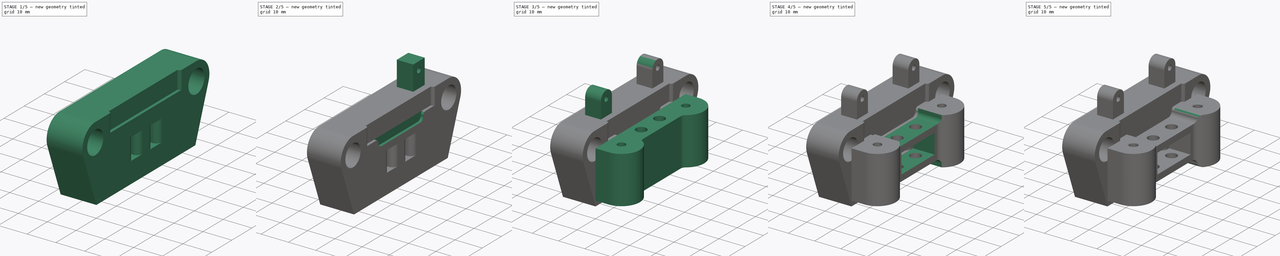
[diagram: build sequence overview — one tinted view per stage of 5, left to right]
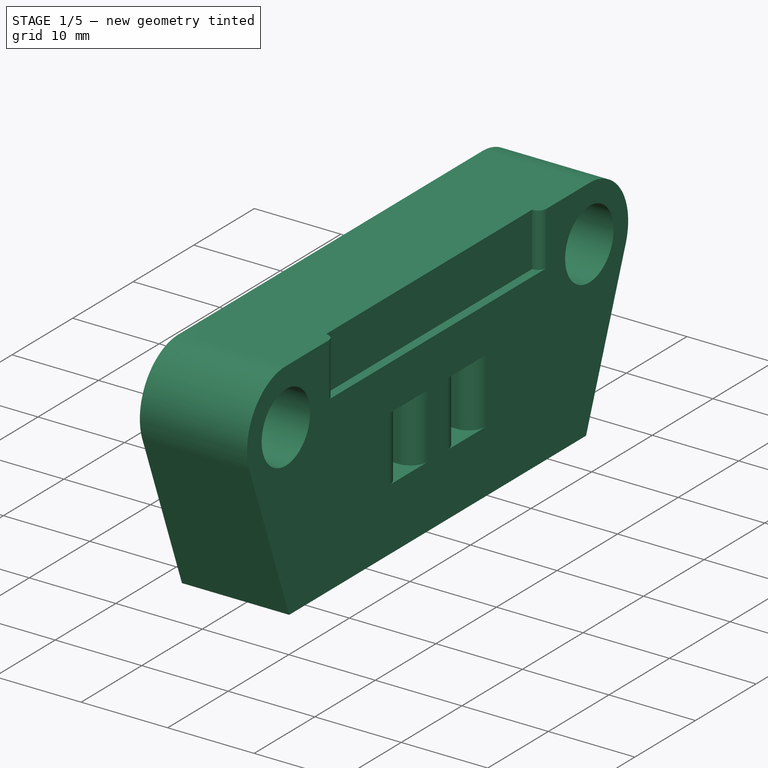
[diagram: stage 1 of 5 — iso view after this stage's code; geometry added in this stage tinted green]
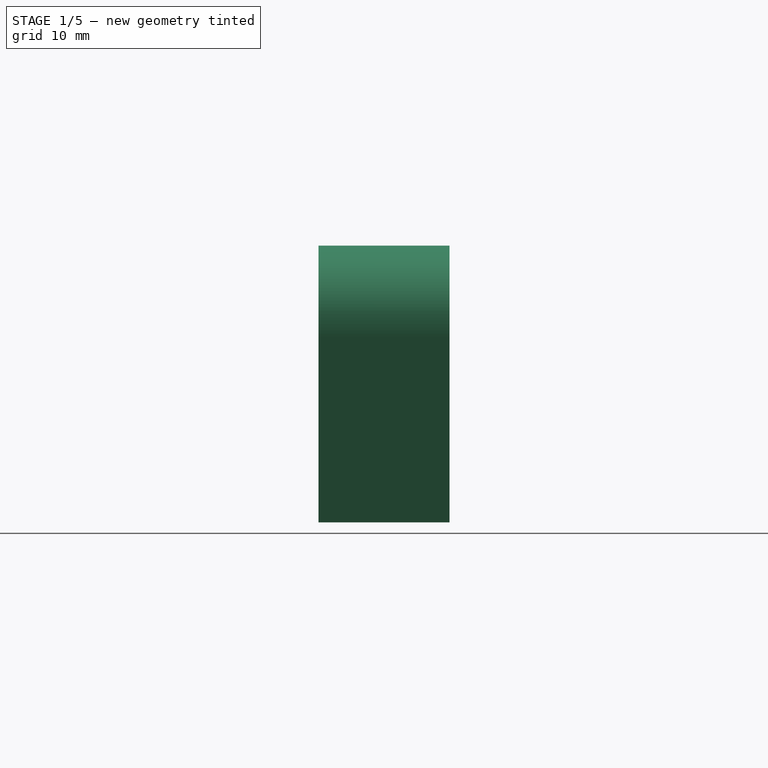
[diagram: stage 1 of 5 — front view after this stage's code; geometry added in this stage tinted green]
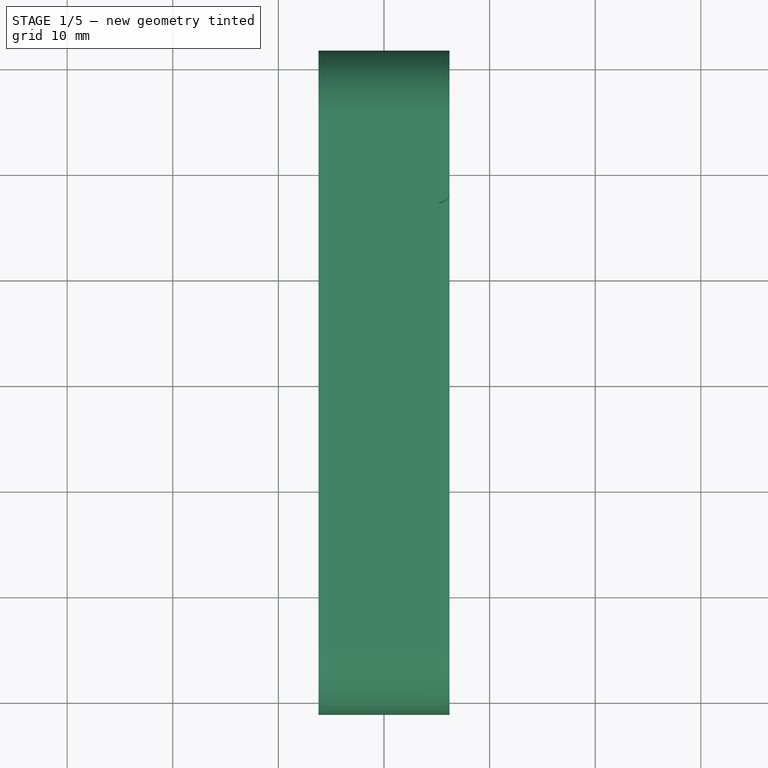
[diagram: stage 1 of 5 — top view after this stage's code; geometry added in this stage tinted green]
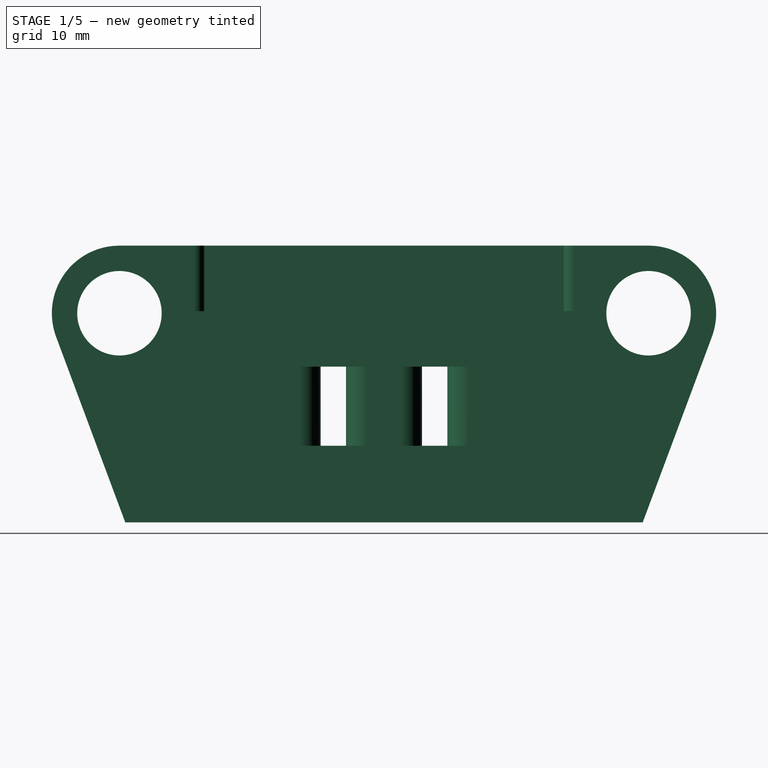
[diagram: stage 1 of 5 — right view after this stage's code; geometry added in this stage tinted green]
FCSTD DOCUMENT  (FreeCAD 0.19R24291 (Git))
Label: plotter-e-carridge-holder
License: All rights reserved
LicenseURL: http://en.wikipedia.org/wiki/All_rights_reserved
objects: Sketcher::SketchObject×11, PartDesign::Fillet×8, PartDesign::Pad×6, PartDesign::Body×6, PartDesign::Pocket×5, Spreadsheet::Sheet×1, PartDesign::Chamfer×1, App::Part×1
note: 57 computed .brp shape members not serialized (recipe doc carries the construction recipe); baked Part::Feature solids carry a one-line shape summary decoded from their .brp

FEATURE [Spreadsheet::Sheet] Spreadsheet  label="Specs"
  cells = A5=Core length; B5(core_length)=70; A6=Core heigth; B6(core_height)=22; A7=Core inner length; B7(core_inner_length)=36; A9=Belt hole heigth; B9(belt_hole_height)=9.199999999999999; A10=Belt hole width; B10(belt_hole_width)=16; A12=LM8UU Diameter; B12(lm8uu_d)=15.1; A13=Rod Diameter; B13(rod_d)=8.4; A14=LM8UU Legth; B14(lm8uu_l)=24; A16=nema_l; B16(nema_l)=42; A17=nema_hole_d; B17(nema_hole_d)=3; A18=nema_hole_pos; B18(nema_hole_pos)==31 / 2
FEATURE [Sketcher::SketchObject] Sketch019
  FullyConstrained = true
  MapMode = 5
  Placement = pos=(0,0,0) rot=(0.57735,-0.57735,-0.57735;2.0944rad)
  expr: Constraints[16] = (Spreadsheet.core_length - Spreadsheet.lm8uu_d) / 2 - 2.4
  expr: Constraints[17] = (Spreadsheet.belt_hole_height + Spreadsheet.rod_d) / 2
  expr: Constraints[41] = Spreadsheet.core_height / 2
  sketch-geometry (17):
    g0: ArcOfCircle CenterX=-25.05 CenterY=8.8 CenterZ=0 NormalX=0 NormalY=0 NormalZ=1 AngleXU=0 Radius=6.4 StartAngle=1.5708 EndAngle=3.49837
    g1: ArcOfCircle CenterX=25.05 CenterY=8.8 CenterZ=0 NormalX=0 NormalY=0 NormalZ=1 AngleXU=0 Radius=6.4 StartAngle=5.9264 EndAngle=7.85398
    g2: LineSegment StartX=-31.047 StartY=6.56473 StartZ=0 EndX=-24.5 EndY=-11 EndZ=0
    g3: LineSegment StartX=-24.5 StartY=-11 StartZ=0 EndX=24.5 EndY=-11 EndZ=0
    g4: LineSegment StartX=24.5 StartY=-11 StartZ=0 EndX=31.047 EndY=6.56473 EndZ=0
    g5: LineSegment StartX=-6 StartY=3.75 StartZ=0 EndX=-3.6 EndY=3.75 EndZ=0
    g6: LineSegment StartX=-3.6 StartY=3.75 StartZ=0 EndX=-3.6 EndY=-3.75 EndZ=0
    g7: LineSegment StartX=-3.6 StartY=-3.75 StartZ=0 EndX=-6 EndY=-3.75 EndZ=0
    g8: LineSegment StartX=-6 StartY=-3.75 StartZ=0 EndX=-6 EndY=3.75 EndZ=0
    g9: Circle CenterX=25.05 CenterY=8.8 CenterZ=0 NormalX=0 NormalY=0 NormalZ=1 AngleXU=0 Radius=4
    g10: Circle CenterX=-25.05 CenterY=8.8 CenterZ=0 NormalX=0 NormalY=0 NormalZ=1 AngleXU=0 Radius=4
    g11: LineSegment StartX=25.05 StartY=12.8 StartZ=0 EndX=25.05 EndY=15.2 EndZ=0
    g12: LineSegment StartX=3.6 StartY=3.75 StartZ=0 EndX=6 EndY=3.75 EndZ=0
    g13: LineSegment StartX=6 StartY=3.75 StartZ=0 EndX=6 EndY=-3.75 EndZ=0
    g14: LineSegment StartX=6 StartY=-3.75 StartZ=0 EndX=3.6 EndY=-3.75 EndZ=0
    g15: LineSegment StartX=3.6 StartY=-3.75 StartZ=0 EndX=3.6 EndY=3.75 EndZ=0
    g16: LineSegment StartX=-25.05 StartY=15.2 StartZ=0 EndX=25.05 EndY=15.2 EndZ=0
  constraints (44):
    c: Symmetric(g0,g1,g-2)
    c: Symmetric(g2,g4,g-2)
    c: Horizontal(g0,g1)
    c: Coincident(g2,g3)
    c: Coincident(g3,g4)
    c: Coincident(g5,g6)
    c: Coincident(g6,g7)
    c: Coincident(g7,g8)
    c: Coincident(g8,g5)
    c: Horizontal(g5)
    c: Horizontal(g7)
    c: Vertical(g6)
    c: DistanceX(g5,g5) = 2.4
    c: DistanceY(g6,g6) = 7.5
    c: Coincident(g9,g1)
    c: Diameter(g9) = 8
    c: DistanceX(g-1,g1) = 25.05
    c: DistanceY(g-1,g1) = 8.8
    c: Coincident(g10,g0)
    c: Equal(g10,g9)
    c: Symmetric(g0,g1,g-2)
    c: Coincident(g2,g0)
    c: Tangent(g4,g1) = -1.5708
    c: PointOnObject(g11,g9)
    c: PointOnObject(g11,g1)
    c: Distance(g11) = 2.4
    c: Perpendicular(g9,g11)
    c: Vertical(g11)
    c: Symmetric(g7,g5,g-1)
    c: Coincident(g12,g13)
    c: Coincident(g13,g14)
    c: Coincident(g14,g15)
    c: Coincident(g15,g12)
    c: Horizontal(g12)
    c: Horizontal(g14)
    c: Vertical(g15)
    c: Symmetric(g12,g13,g-1)
    c: DistanceX(g12,g12) = 2.4
    c: DistanceX(g5,g12) = 12
    c: Symmetric(g5,g12,g-2)
    c: DistanceX(g3,g3) = 49
    c: DistanceY(g2,g-1) = 11
    c: Coincident(g16,g1)
    c: Tangent(g16,g0) = 1.5708
FEATURE [PartDesign::Pad] Pad006
  Direction = (1,1,1)
  Length = 12.4
  Length2 = 100
  Midplane = true
  Placement = pos=(0,0,0) rot=(0.57735,-0.57735,-0.57735;2.0944rad)
  Profile = -> Sketch019
  Type = 0
FEATURE [PartDesign::Body] Body004  label="EBraket"
  Group = -> [Sketch,Pad008,Sketch022,Pocket,Sketch023,Pocket001,Sketch024,Pocket002,Fillet001,Fillet002,Chamfer]
  Origin = -> Origin006
  Tip = -> Chamfer
FEATURE [PartDesign::Fillet] Fillet
  Base = -> Pad006 [Edge30,Edge35,Edge42,Edge47]
  BaseFeature = -> Pad006
  Placement = pos=(0,0,0) rot=(0.57735,-0.57735,-0.57735;2.0944rad)
  Radius = 2
  SupportTransform = false
FEATURE [PartDesign::Body] Body006  label="RightServoMount"
  Group = -> [Sketch026,Pad010,Fillet004]
  Origin = -> Origin008
  Placement = pos=(2.2,0,0) rot=(0,0,1;0rad)
  Tip = -> Fillet004
FEATURE [Sketcher::SketchObject] Sketch027
  FullyConstrained = true
  MapMode = 5
  Placement = pos=(6.2,0,-7e-16) rot=(0.57735,-0.57735,0.57735;4.18879rad)
  Support = -> [Fillet]
  sketch-geometry (4):
    g0: LineSegment StartX=-17 StartY=-9 StartZ=0 EndX=17 EndY=-9 EndZ=0
    g1: LineSegment StartX=17 StartY=-9 StartZ=0 EndX=17 EndY=-15.2 EndZ=0
    g2: LineSegment StartX=17 StartY=-15.2 StartZ=0 EndX=-17 EndY=-15.2 EndZ=0
    g3: LineSegment StartX=-17 StartY=-15.2 StartZ=0 EndX=-17 EndY=-9 EndZ=0
  constraints (11):
    c: Coincident(g0,g1)
    c: Coincident(g1,g2)
    c: Coincident(g2,g3)
    c: Coincident(g3,g0)
    c: Horizontal(g2)
    c: Vertical(g1)
    c: Vertical(g3)
    c: Symmetric(g0,g0,g-2)
    c: DistanceY(g1,g-1) = 15.2
    c: DistanceY(g0,g-1) = 9
    c: DistanceX(g2,g2) = 34
FEATURE [PartDesign::Pocket] Pocket003
  BaseFeature = -> Fillet
  Length = 1
  Length2 = 100
  Placement = pos=(0,0,0) rot=(0.57735,-0.57735,-0.57735;2.0944rad)
  Profile = -> Sketch027
  Type = 0
FEATURE [PartDesign::Fillet] Fillet005
  Base = -> Pocket003 [Edge31,Edge29]
  BaseFeature = -> Pocket003
  Placement = pos=(0,0,0) rot=(0.57735,-0.57735,-0.57735;2.0944rad)
  Radius = 0.99
  SupportTransform = false
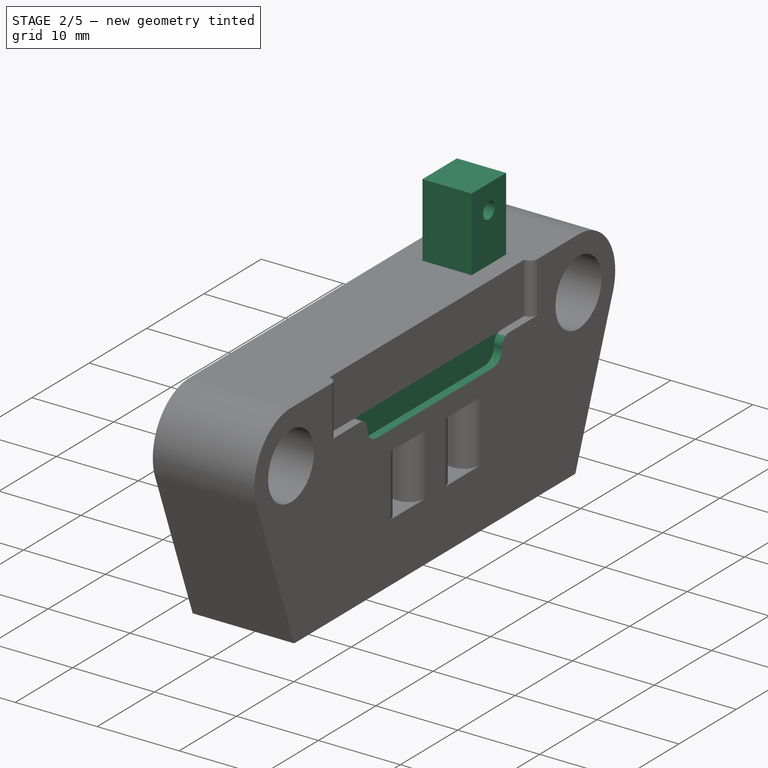
[diagram: stage 2 of 5 — iso view after this stage's code; geometry added in this stage tinted green]
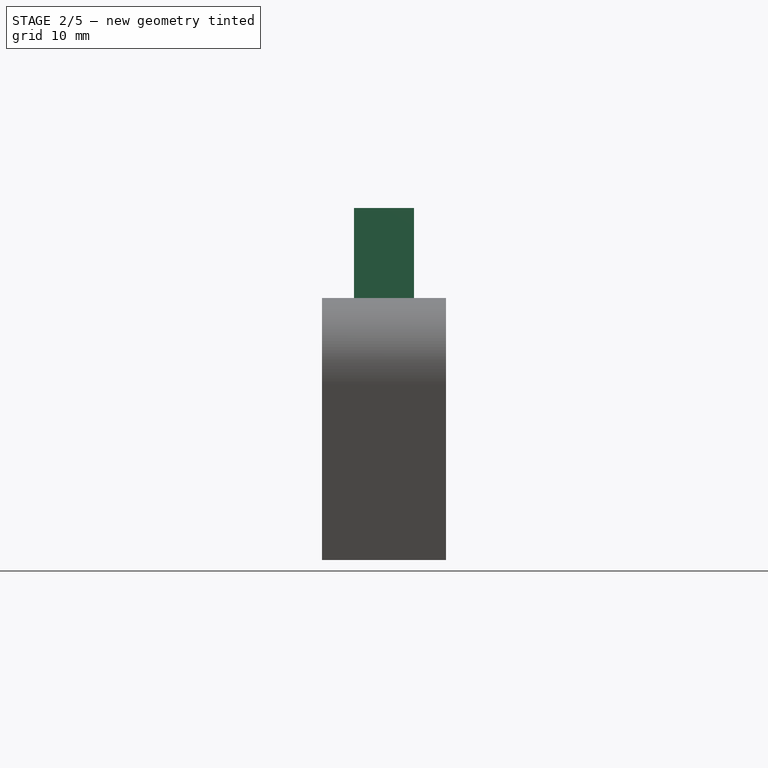
[diagram: stage 2 of 5 — front view after this stage's code; geometry added in this stage tinted green]
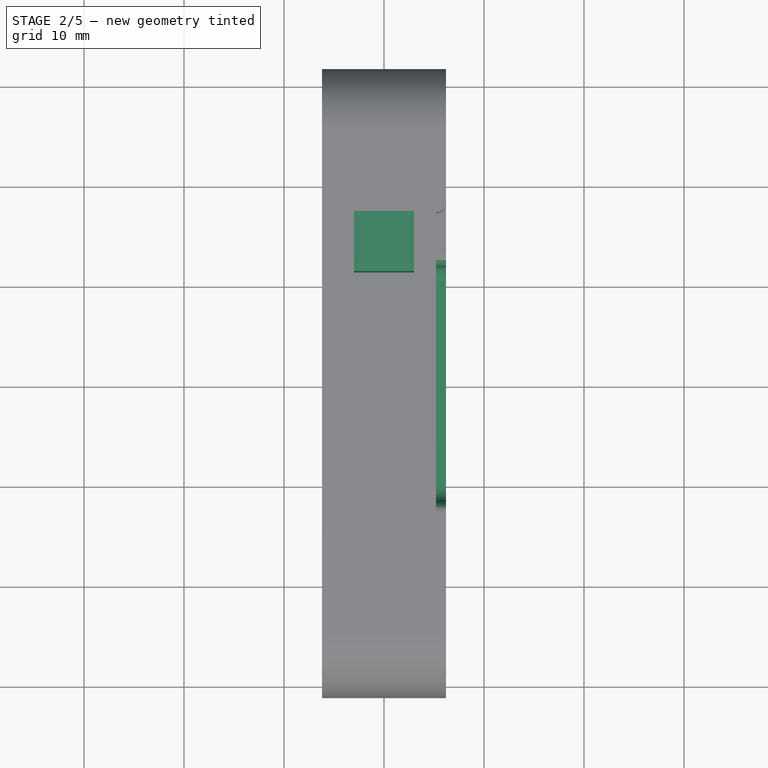
[diagram: stage 2 of 5 — top view after this stage's code; geometry added in this stage tinted green]
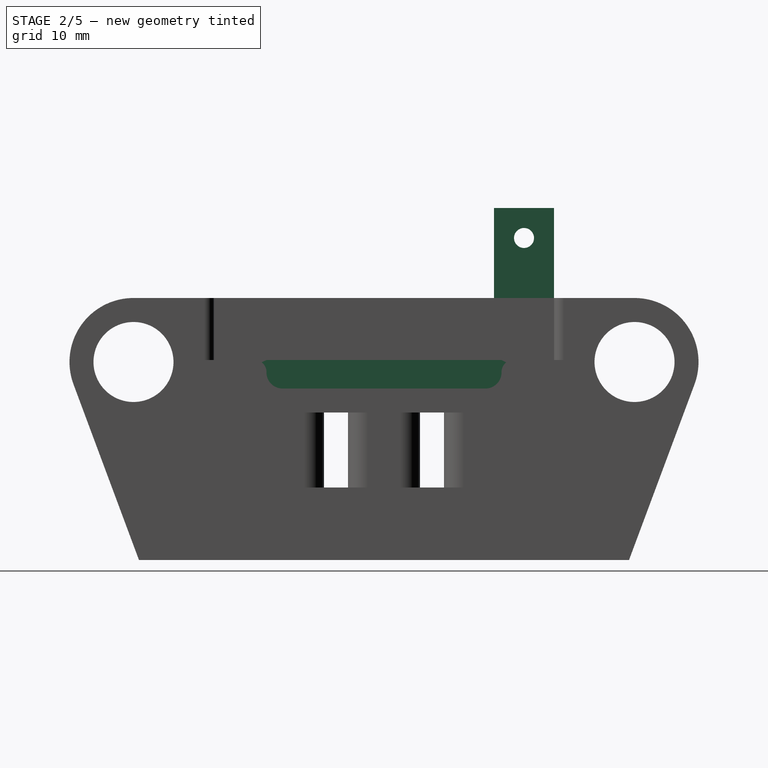
[diagram: stage 2 of 5 — right view after this stage's code; geometry added in this stage tinted green]
FEATURE [PartDesign::Body] Body005  label="LeftMotorMount"
  Group = -> [Sketch025,Pad009,Fillet003]
  Origin = -> Origin007
  Placement = pos=(2.2,0,0) rot=(0,0,1;0rad)
  Tip = -> Fillet003
FEATURE [Sketcher::SketchObject] Sketch026
  FullyConstrained = true
  MapMode = 5
  Placement = pos=(0,0,0) rot=(0.57735,0.57735,0.57735;2.0944rad)
  Support = -> [YZ_Plane008]
  expr: Constraints[9] = 8.800000000000001 + 2.4 + 4
  sketch-geometry (5):
    g0: LineSegment StartX=11 StartY=24.2 StartZ=0 EndX=17 EndY=24.2 EndZ=0
    g1: LineSegment StartX=17 StartY=24.2 StartZ=0 EndX=17 EndY=15.2 EndZ=0
    g2: LineSegment StartX=17 StartY=15.2 StartZ=0 EndX=11 EndY=15.2 EndZ=0
    g3: LineSegment StartX=11 StartY=15.2 StartZ=0 EndX=11 EndY=24.2 EndZ=0
    g4: Circle CenterX=14 CenterY=21.2 CenterZ=0 NormalX=0 NormalY=0 NormalZ=1 AngleXU=0 Radius=1
  constraints (15):
    c: Coincident(g0,g1)
    c: Coincident(g1,g2)
    c: Coincident(g2,g3)
    c: Coincident(g3,g0)
    c: Horizontal(g2)
    c: Vertical(g1)
    c: Vertical(g3)
    c: DistanceY(g1,g1) = 9
    c: DistanceX(g0,g0) = 6
    c: DistanceY(g-1,g2) = 15.2
    c: Diameter(g4) = 2
    c: Horizontal(g0)
    c: DistanceY(g1,g4) = 6
    c: DistanceX(g0,g4) = 3
    c: DistanceX(g-1,g4) = 14
FEATURE [PartDesign::Pad] Pad010
  Direction = (1,1,1)
  Length = 6
  Length2 = 100
  Midplane = true
  Placement = pos=(0,0,0) rot=(0.57735,0.57735,0.57735;2.0944rad)
  Profile = -> Sketch026
  Type = 0
FEATURE [Sketcher::SketchObject] Sketch028
  FullyConstrained = true
  MapMode = 5
  Placement = pos=(6.2,0,-1.4e-15) rot=(-0.57735,0.57735,-0.57735;2.0944rad)
  Support = -> [Fillet005]
  sketch-geometry (4):
    g0: LineSegment StartX=-11.75 StartY=-6.15 StartZ=0 EndX=11.75 EndY=-6.15 EndZ=0
    g1: LineSegment StartX=11.75 StartY=-6.15 StartZ=0 EndX=11.75 EndY=-9 EndZ=0
    g2: LineSegment StartX=11.75 StartY=-9 StartZ=0 EndX=-11.75 EndY=-9 EndZ=0
    g3: LineSegment StartX=-11.75 StartY=-9 StartZ=0 EndX=-11.75 EndY=-6.15 EndZ=0
  constraints (11):
    c: Coincident(g0,g1)
    c: Coincident(g1,g2)
    c: Coincident(g2,g3)
    c: Coincident(g3,g0)
    c: Horizontal(g0)
    c: Vertical(g1)
    c: Vertical(g3)
    c: Symmetric(g2,g1,g-2)
    c: DistanceY(g2,g-1) = 9
    c: DistanceY(g0,g-1) = 6.15
    c: DistanceX(g2,g1) = 23.5
FEATURE [PartDesign::Pocket] Pocket004
  BaseFeature = -> Fillet005
  Length = 1
  Length2 = 100
  Placement = pos=(0,0,0) rot=(0.57735,-0.57735,-0.57735;2.0944rad)
  Profile = -> Sketch028
  Type = 0
FEATURE [PartDesign::Fillet] Fillet006
  Base = -> Pocket004 [Edge43,Edge41]
  BaseFeature = -> Pocket004
  Placement = pos=(0,0,0) rot=(0.57735,-0.57735,-0.57735;2.0944rad)
  Radius = 1.6
  SupportTransform = false
FEATURE [PartDesign::Fillet] Fillet007
  Base = -> Fillet006 [Edge51,Edge38]
  BaseFeature = -> Fillet006
  Placement = pos=(0,0,0) rot=(0.57735,-0.57735,-0.57735;2.0944rad)
  Radius = 1.2
  SupportTransform = false
FEATURE [PartDesign::Body] Body002  label="RodHolder"
  Group = -> [Sketch019,Pad006,Fillet,Sketch027,Pocket003,Fillet005,Sketch028,Pocket004,Fillet006,Fillet007]
  Origin = -> Origin004
  Tip = -> Fillet007
FEATURE [App::Part] Part001  label="ECarridgeHolder"
  Group = -> [Body002,Body,Body003,Body004,Body005,Body006]
  Origin = -> Origin002
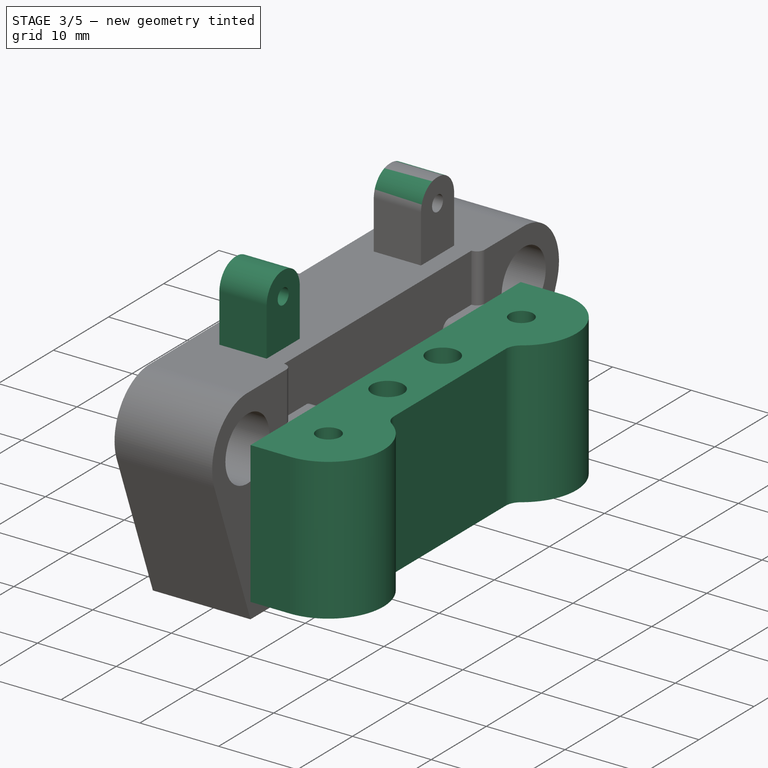
[diagram: stage 3 of 5 — iso view after this stage's code; geometry added in this stage tinted green]
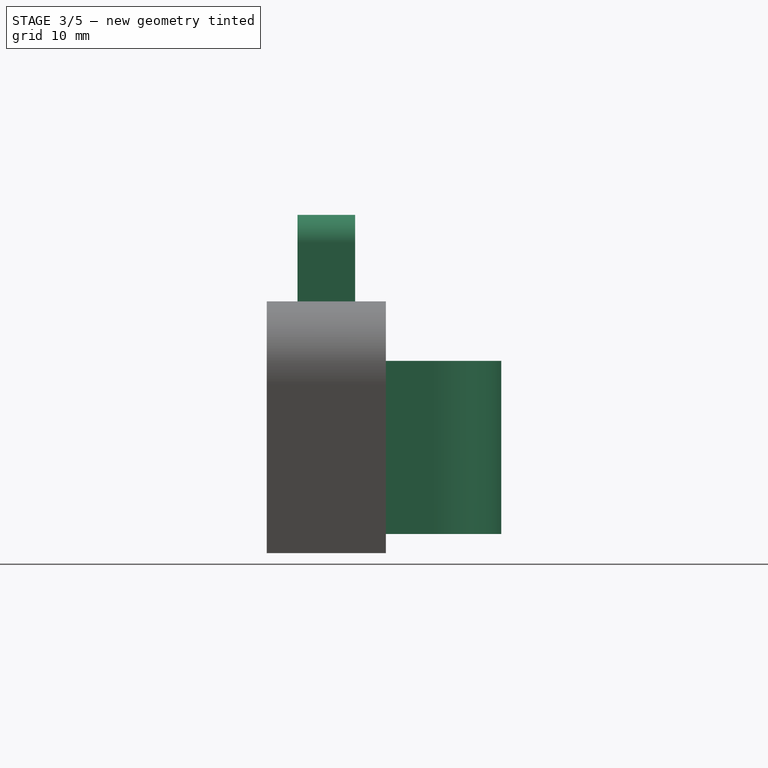
[diagram: stage 3 of 5 — front view after this stage's code; geometry added in this stage tinted green]
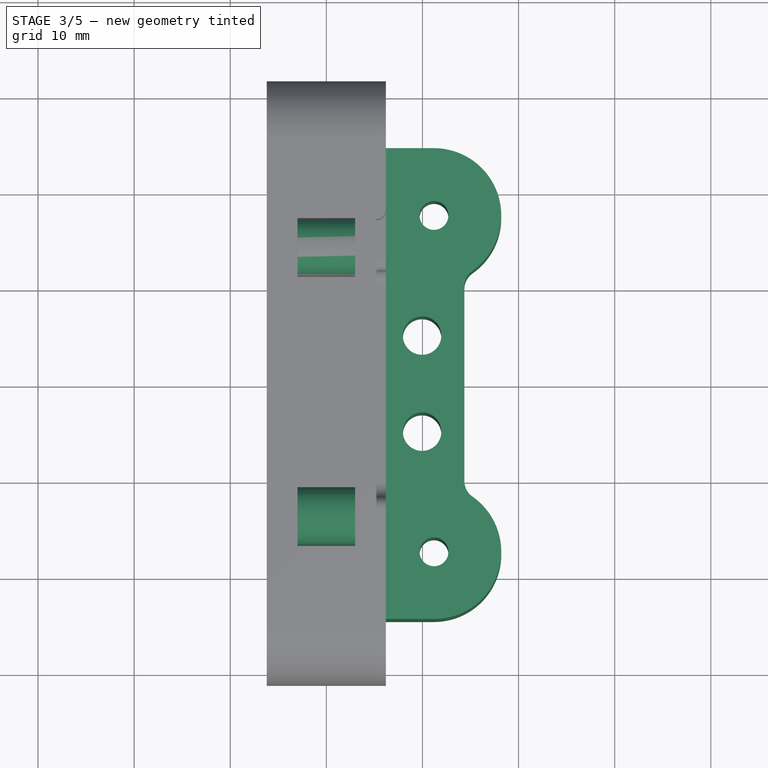
[diagram: stage 3 of 5 — top view after this stage's code; geometry added in this stage tinted green]
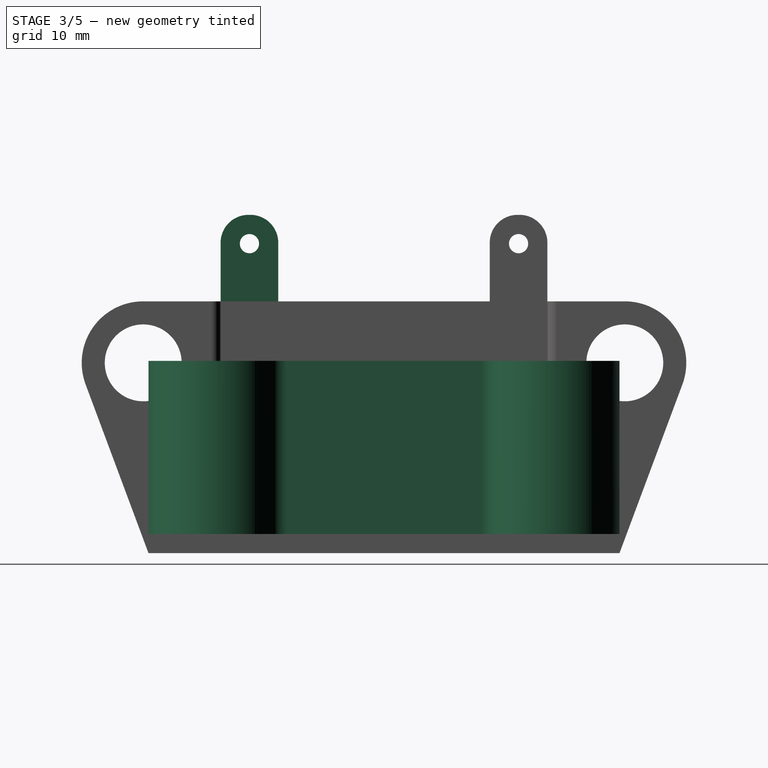
[diagram: stage 3 of 5 — right view after this stage's code; geometry added in this stage tinted green]
FEATURE [PartDesign::Body] Body003  label="RodCapRight"
  Group = -> [Sketch021,Pad007]
  Origin = -> Origin005
  Placement = pos=(5,0,0) rot=(0,0,1;3.14159rad)
  Tip = -> Pad007
FEATURE [Sketcher::SketchObject] Sketch
  FullyConstrained = true
  MapMode = 5
  Support = -> [XY_Plane006]
  expr: Constraints[7] = 35 / 2
  expr: Constraints[8] = 12.4 / 2
  sketch-geometry (12):
    g0: LineSegment StartX=6.2 StartY=24.5 StartZ=0 EndX=6.2 EndY=-24.5 EndZ=0
    g1: LineSegment StartX=6.2 StartY=-24.5 StartZ=0 EndX=11.2 EndY=-24.5 EndZ=0
    g2: ArcOfCircle CenterX=11.2 CenterY=-17.5 CenterZ=0 NormalX=0 NormalY=0 NormalZ=1 AngleXU=0 Radius=7 StartAngle=4.71239 EndAngle=7.24312
    g3: Circle CenterX=11.2 CenterY=-17.5 CenterZ=0 NormalX=0 NormalY=0 NormalZ=1 AngleXU=0 Radius=1.5
    g4: Circle CenterX=11.2 CenterY=17.5 CenterZ=0 NormalX=0 NormalY=0 NormalZ=1 AngleXU=0 Radius=1.5
    g5: ArcOfCircle CenterX=11.2 CenterY=17.5 CenterZ=0 NormalX=0 NormalY=0 NormalZ=1 AngleXU=0 Radius=7 StartAngle=5.32325 EndAngle=7.85398
    g6: LineSegment StartX=6.2 StartY=24.5 StartZ=0 EndX=11.2 EndY=24.5 EndZ=0
    g7: ArcOfCircle CenterX=16.3622 CenterY=10.1276 CenterZ=0 NormalX=0 NormalY=0 NormalZ=1 AngleXU=0 Radius=2 StartAngle=2.18166 EndAngle=3.14159
    g8: ArcOfCircle CenterX=16.3622 CenterY=-10.1276 CenterZ=0 NormalX=0 NormalY=0 NormalZ=1 AngleXU=0 Radius=2 StartAngle=3.14159 EndAngle=4.10152
    g9: LineSegment StartX=14.3622 StartY=10.1276 StartZ=0 EndX=14.3622 EndY=-10.1276 EndZ=0
    g10: Circle CenterX=9.96219 CenterY=5 CenterZ=0 NormalX=0 NormalY=0 NormalZ=1 AngleXU=0 Radius=2
    g11: Circle CenterX=9.96219 CenterY=-5 CenterZ=0 NormalX=0 NormalY=0 NormalZ=1 AngleXU=0 Radius=2
  constraints (31):
    c: Vertical(g0)
    c: Coincident(g0,g1)
    c: Diameter(g2) = 14
    c: Angle(g2) = 2.53073
    c: Horizontal(g1)
    c: Coincident(g3,g2)
    c: Diameter(g3) = 3
    c: DistanceY(g2,g-1) = 17.5
    c: DistanceX(g-1,g0) = 6.2
    c: Tangent(g2,g1) = -1.5708
    c: Coincident(g5,g4)
    c: Equal(g5,g2)
    c: Symmetric(g4,g2,g-1)
    c: Vertical(g5,g1)
    c: Coincident(g6,g0)
    c: Coincident(g6,g5)
    c: Horizontal(g6)
    c: Vertical(g2,g5)
    c: Equal(g3,g4)
    c: Tangent(g7,g5) = 1.5708
    c: Tangent(g8,g2) = 1.5708
    c: Tangent(g9,g7) = -1.5708
    c: Tangent(g9,g8) = -1.5708
    c: Vertical(g9)
    c: Diameter(g8) = 4
    c: DistanceX(g1,g1) = 5
    c: Symmetric(g10,g11,g-1)
    c: Equal(g10,g11)
    c: Diameter(g10) = 4
    c: DistanceY(g11,g10) = 10
    c: DistanceX(g10,g7) = 4.4
FEATURE [PartDesign::Pad] Pad008
  Direction = (1,1,1)
  Length = 18
  Length2 = 100
  Midplane = true
  Profile = -> Sketch
  Type = 0
FEATURE [Sketcher::SketchObject] Sketch025
  FullyConstrained = true
  MapMode = 5
  Placement = pos=(0,0,0) rot=(0.57735,0.57735,0.57735;2.0944rad)
  Support = -> [YZ_Plane007]
  expr: Constraints[9] = 8.800000000000001 + 2.4 + 4
  sketch-geometry (5):
    g0: LineSegment StartX=-17 StartY=24.2 StartZ=0 EndX=-11 EndY=24.2 EndZ=0
    g1: LineSegment StartX=-11 StartY=24.2 StartZ=0 EndX=-11 EndY=15.2 EndZ=0
    g2: LineSegment StartX=-11 StartY=15.2 StartZ=0 EndX=-17 EndY=15.2 EndZ=0
    g3: LineSegment StartX=-17 StartY=15.2 StartZ=0 EndX=-17 EndY=24.2 EndZ=0
    g4: Circle CenterX=-14 CenterY=21.2 CenterZ=0 NormalX=0 NormalY=0 NormalZ=1 AngleXU=0 Radius=1
  constraints (15):
    c: Coincident(g0,g1)
    c: Coincident(g1,g2)
    c: Coincident(g2,g3)
    c: Coincident(g3,g0)
    c: Horizontal(g2)
    c: Vertical(g1)
    c: Vertical(g3)
    c: DistanceY(g1,g1) = 9
    c: DistanceX(g0,g0) = 6
    c: DistanceY(g-1,g2) = 15.2
    c: Diameter(g4) = 2
    c: Horizontal(g0)
    c: DistanceX(g4,g-1) = 14
    c: DistanceY(g1,g4) = 6
    c: DistanceX(g0,g4) = 3
FEATURE [PartDesign::Pad] Pad009
  Direction = (1,1,1)
  Length = 6
  Length2 = 100
  Midplane = true
  Placement = pos=(0,0,0) rot=(0.57735,0.57735,0.57735;2.0944rad)
  Profile = -> Sketch025
  Type = 0
FEATURE [PartDesign::Fillet] Fillet003
  Base = -> Pad009 [Edge2,Edge1]
  BaseFeature = -> Pad009
  Placement = pos=(0,0,0) rot=(0.57735,0.57735,0.57735;2.0944rad)
  Radius = 2.9
  SupportTransform = false
FEATURE [PartDesign::Fillet] Fillet004
  Base = -> Pad010 [Edge2,Edge1]
  BaseFeature = -> Pad010
  Placement = pos=(0,0,0) rot=(0.57735,0.57735,0.57735;2.0944rad)
  Radius = 2.9
  SupportTransform = false
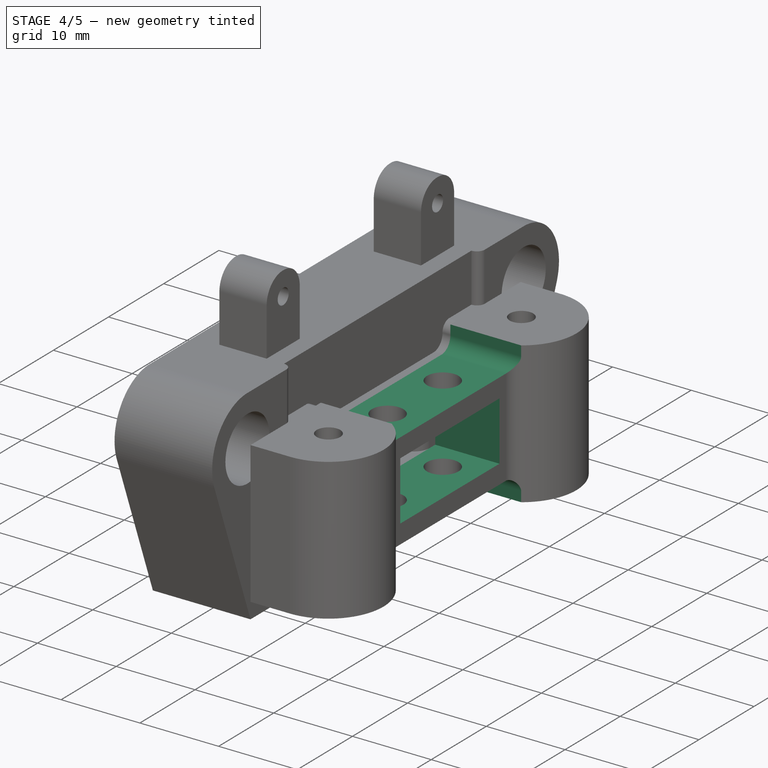
[diagram: stage 4 of 5 — iso view after this stage's code; geometry added in this stage tinted green]
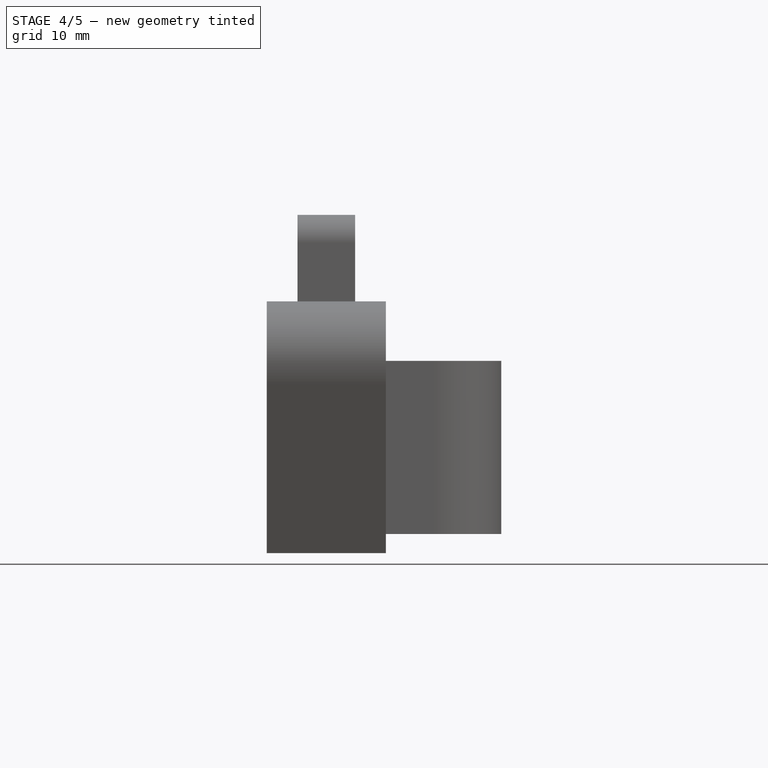
[diagram: stage 4 of 5 — front view after this stage's code; geometry added in this stage tinted green]
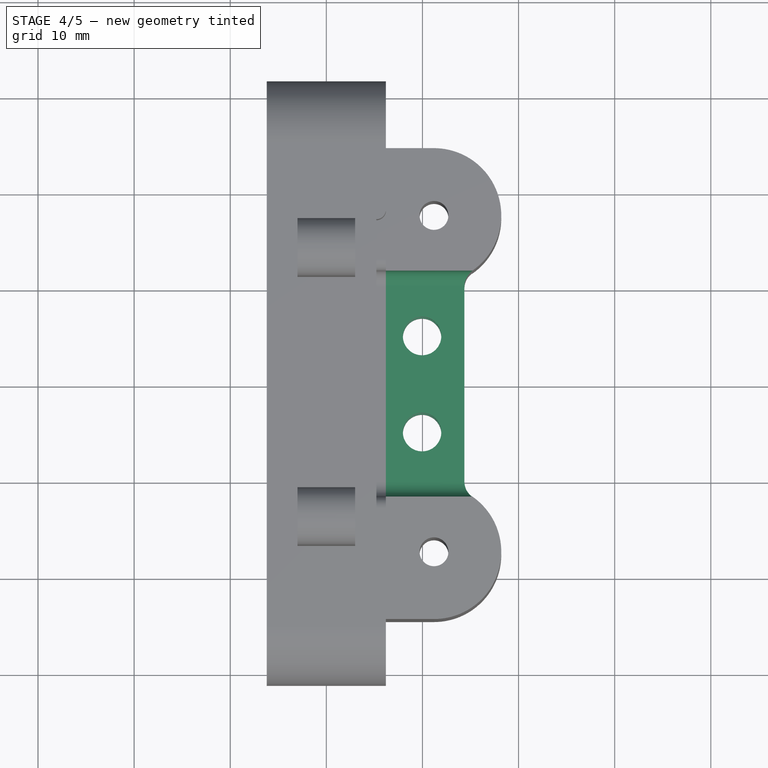
[diagram: stage 4 of 5 — top view after this stage's code; geometry added in this stage tinted green]
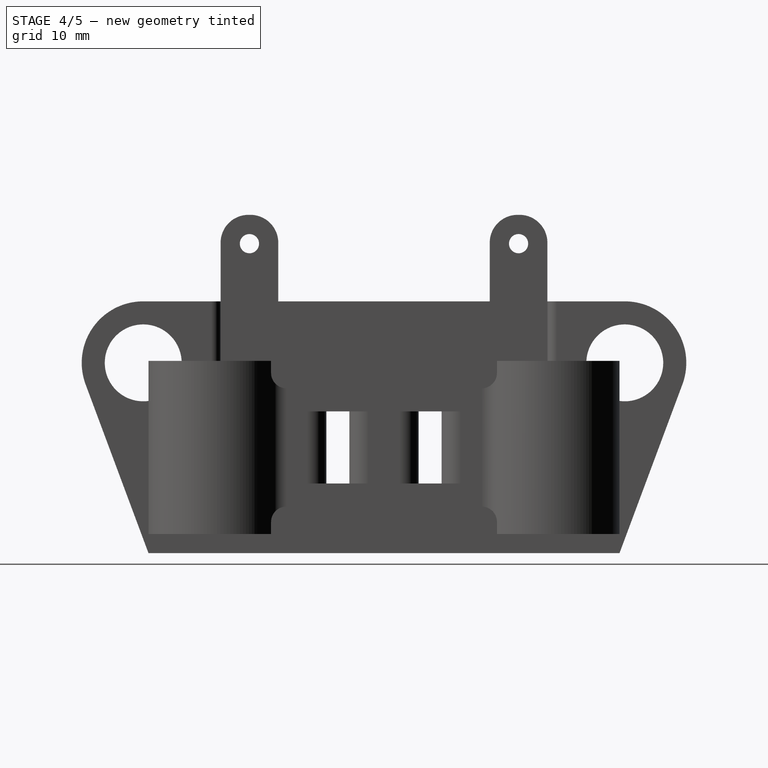
[diagram: stage 4 of 5 — right view after this stage's code; geometry added in this stage tinted green]
FEATURE [Sketcher::SketchObject] Sketch022
  FullyConstrained = true
  MapMode = 5
  Placement = pos=(0,0,0) rot=(0.57735,0.57735,0.57735;2.0944rad)
  Support = -> [YZ_Plane006]
  sketch-geometry (4):
    g0: LineSegment StartX=-9 StartY=3.75 StartZ=0 EndX=9 EndY=3.75 EndZ=0
    g1: LineSegment StartX=9 StartY=3.75 StartZ=0 EndX=9 EndY=-3.75 EndZ=0
    g2: LineSegment StartX=9 StartY=-3.75 StartZ=0 EndX=-9 EndY=-3.75 EndZ=0
    g3: LineSegment StartX=-9 StartY=-3.75 StartZ=0 EndX=-9 EndY=3.75 EndZ=0
  constraints (11):
    c: Coincident(g0,g1)
    c: Coincident(g1,g2)
    c: Coincident(g2,g3)
    c: Coincident(g3,g0)
    c: Horizontal(g0)
    c: Horizontal(g2)
    c: Vertical(g1)
    c: Vertical(g3)
    c: Symmetric(g0,g1,g-1)
    c: DistanceX(g0,g0) = 18
    c: DistanceY(g3,g3) = 7.5
FEATURE [PartDesign::Pocket] Pocket
  BaseFeature = -> Pad008
  Length = 5
  Length2 = 100
  Midplane = true
  Profile = -> Sketch022
  Type = 1
FEATURE [Sketcher::SketchObject] Sketch023
  FullyConstrained = true
  MapMode = 5
  Placement = pos=(0,0,0) rot=(0.57735,0.57735,0.57735;2.0944rad)
  Support = -> [YZ_Plane006]
  expr: Constraints[9] = 7.5 / 2 + 2.4
  sketch-geometry (4):
    g0: LineSegment StartX=-11.75 StartY=16.15 StartZ=0 EndX=11.75 EndY=16.15 EndZ=0
    g1: LineSegment StartX=11.75 StartY=16.15 StartZ=0 EndX=11.75 EndY=6.15 EndZ=0
    g2: LineSegment StartX=11.75 StartY=6.15 StartZ=0 EndX=-11.75 EndY=6.15 EndZ=0
    g3: LineSegment StartX=-11.75 StartY=6.15 StartZ=0 EndX=-11.75 EndY=16.15 EndZ=0
  constraints (11):
    c: Coincident(g0,g1)
    c: Coincident(g1,g2)
    c: Coincident(g2,g3)
    c: Coincident(g3,g0)
    c: Horizontal(g2)
    c: Vertical(g1)
    c: Vertical(g3)
    c: Symmetric(g0,g0,g-2)
    c: DistanceX(g0,g0) = 23.5
    c: DistanceY(g-1,g2) = 6.15
    c: DistanceY(g1,g1) = 10
FEATURE [PartDesign::Pocket] Pocket001
  BaseFeature = -> Pocket
  Length = 5
  Length2 = 100
  Midplane = true
  Profile = -> Sketch023
  Type = 1
FEATURE [Sketcher::SketchObject] Sketch024
  FullyConstrained = true
  MapMode = 5
  Placement = pos=(0,0,0) rot=(0.57735,0.57735,0.57735;2.0944rad)
  Support = -> [YZ_Plane006]
  expr: Constraints[10] = 7.5 / 2 + 2.4
  sketch-geometry (4):
    g0: LineSegment StartX=-11.75 StartY=-6.15 StartZ=0 EndX=11.75 EndY=-6.15 EndZ=0
    g1: LineSegment StartX=11.75 StartY=-6.15 StartZ=0 EndX=11.75 EndY=-16.15 EndZ=0
    g2: LineSegment StartX=11.75 StartY=-16.15 StartZ=0 EndX=-11.75 EndY=-16.15 EndZ=0
    g3: LineSegment StartX=-11.75 StartY=-16.15 StartZ=0 EndX=-11.75 EndY=-6.15 EndZ=0
  constraints (11):
    c: Coincident(g0,g1)
    c: Coincident(g1,g2)
    c: Coincident(g2,g3)
    c: Coincident(g3,g0)
    c: Horizontal(g2)
    c: Vertical(g1)
    c: Vertical(g3)
    c: Symmetric(g0,g0,g-2)
    c: DistanceX(g2,g2) = 23.5
    c: DistanceY(g1,g1) = 10
    c: DistanceY(g0,g-1) = 6.15
FEATURE [PartDesign::Pocket] Pocket002
  BaseFeature = -> Pocket001
  Length = 5
  Length2 = 100
  Midplane = true
  Profile = -> Sketch024
  Type = 1
FEATURE [PartDesign::Fillet] Fillet001
  Base = -> Pocket002 [Edge36,Edge38,Edge22,Edge26]
  BaseFeature = -> Pocket002
  Radius = 1.6
  SupportTransform = false
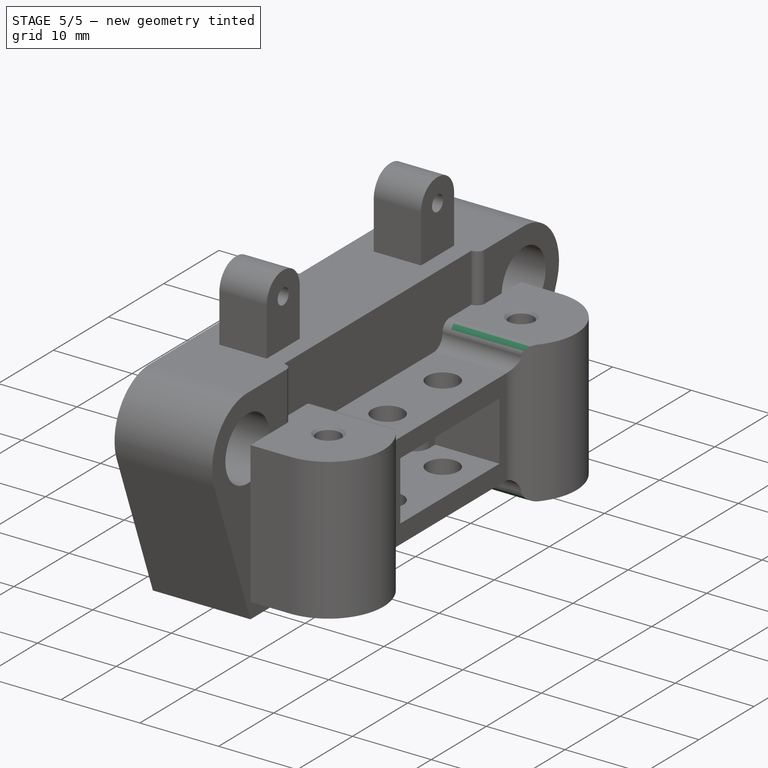
[diagram: stage 5 of 5 — iso view after this stage's code; geometry added in this stage tinted green]
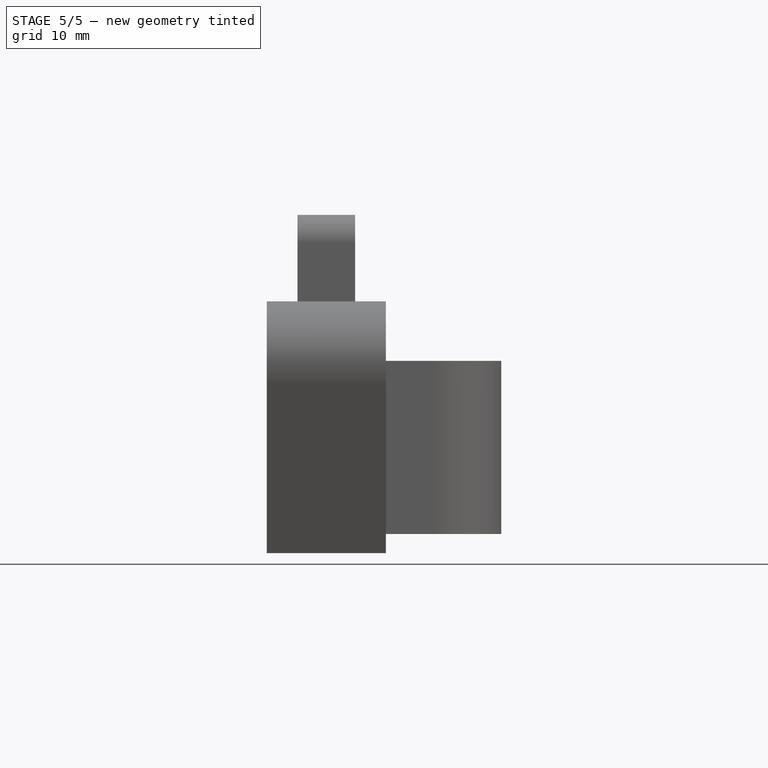
[diagram: stage 5 of 5 — front view after this stage's code; geometry added in this stage tinted green]
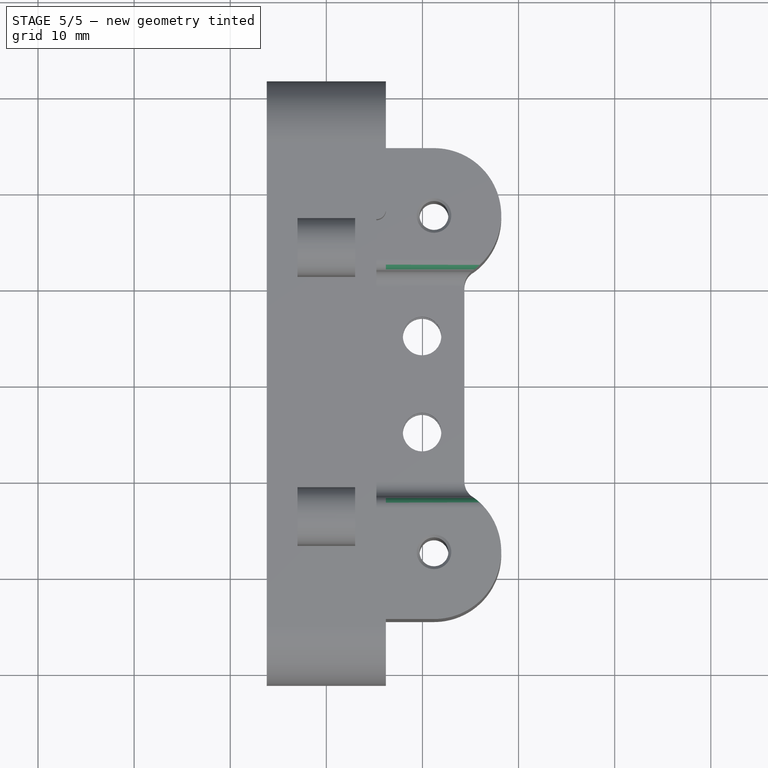
[diagram: stage 5 of 5 — top view after this stage's code; geometry added in this stage tinted green]
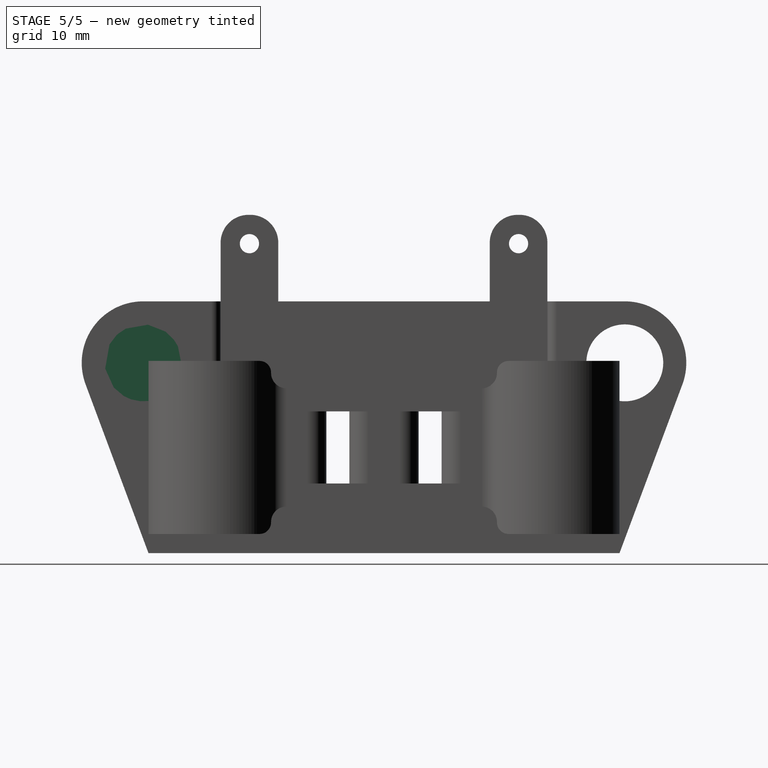
[diagram: stage 5 of 5 — right view after this stage's code; geometry added in this stage tinted green]
FEATURE [Sketcher::SketchObject] Sketch020
  FullyConstrained = true
  MapMode = 5
  Placement = pos=(0,0,0) rot=(0.57735,0.57735,0.57735;2.0944rad)
  Support = -> [YZ_Plane]
  expr: Constraints[1] = (Spreadsheet.belt_hole_height + Spreadsheet.rod_d) / 2
  expr: Constraints[2] = (Spreadsheet.core_length - Spreadsheet.lm8uu_d) / 2 - 2.4
  sketch-geometry (1):
    g0: Circle CenterX=-25.05 CenterY=8.8 CenterZ=0 NormalX=0 NormalY=0 NormalZ=1 AngleXU=0 Radius=4
  constraints (3):
    c: Diameter(g0) = 8
    c: DistanceY(g-1,g0) = 8.8
    c: DistanceX(g0,g-1) = 25.05
FEATURE [PartDesign::Pad] Pad
  Direction = (1,1,1)
  Length = 2.4
  Length2 = 100
  Midplane = true
  Placement = pos=(0,0,0) rot=(0.57735,0.57735,0.57735;2.0944rad)
  Profile = -> Sketch020
  Reversed = true
  Type = 0
FEATURE [PartDesign::Body] Body  label="RodCapLeft"
  Group = -> [Sketch020,Pad]
  Origin = -> Origin
  Placement = pos=(5,0,0) rot=(0,0,1;0rad)
  Tip = -> Pad
FEATURE [Sketcher::SketchObject] Sketch021
  FullyConstrained = true
  MapMode = 5
  Placement = pos=(0,0,0) rot=(0.57735,0.57735,0.57735;2.0944rad)
  Support = -> [YZ_Plane005]
  expr: Constraints[2] = (Spreadsheet.core_length - Spreadsheet.lm8uu_d) / 2 - 2.4
  expr: Constraints[1] = (Spreadsheet.belt_hole_height + Spreadsheet.rod_d) / 2
  sketch-geometry (1):
    g0: Circle CenterX=-25.05 CenterY=8.8 CenterZ=0 NormalX=0 NormalY=0 NormalZ=1 AngleXU=0 Radius=4
  constraints (3):
    c: Diameter(g0) = 8
    c: DistanceY(g-1,g0) = 8.8
    c: DistanceX(g0,g-1) = 25.05
FEATURE [PartDesign::Pad] Pad007
  Direction = (1,1,1)
  Length = 2.4
  Length2 = 100
  Midplane = true
  Placement = pos=(0,0,0) rot=(0.57735,0.57735,0.57735;2.0944rad)
  Profile = -> Sketch021
  Reversed = true
  Type = 0
FEATURE [PartDesign::Fillet] Fillet002
  Base = -> Fillet001 [Edge87,Edge34,Edge12,Edge81]
  BaseFeature = -> Fillet001
  Radius = 1.2
  SupportTransform = false
FEATURE [PartDesign::Chamfer] Chamfer
  Angle = 45
  Base = -> Fillet002 [Edge98,Edge66,Edge93,Edge64]
  BaseFeature = -> Fillet002
  ChamferType = 0
  FlipDirection = false
  Size = 0.3
  Size2 = 1
  SupportTransform = false
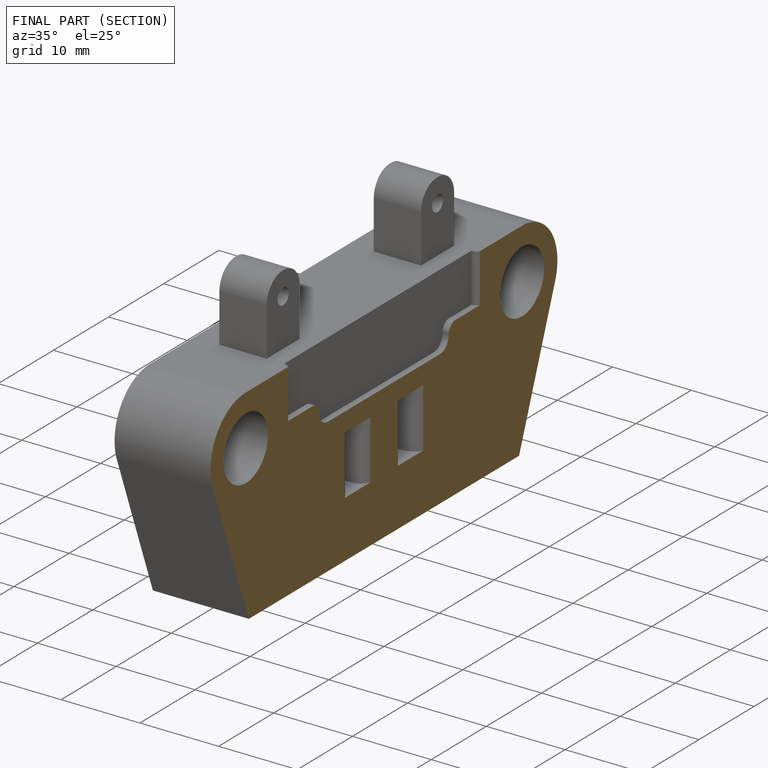
[diagram: finished part — half-section view (interior)]
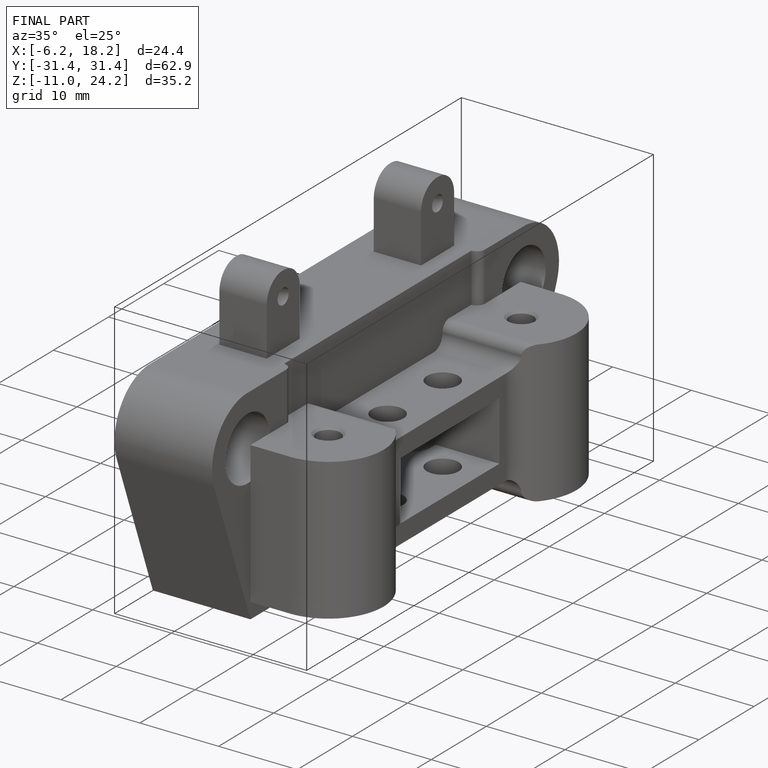
[diagram: finished part — iso view with bounding-box wireframe]
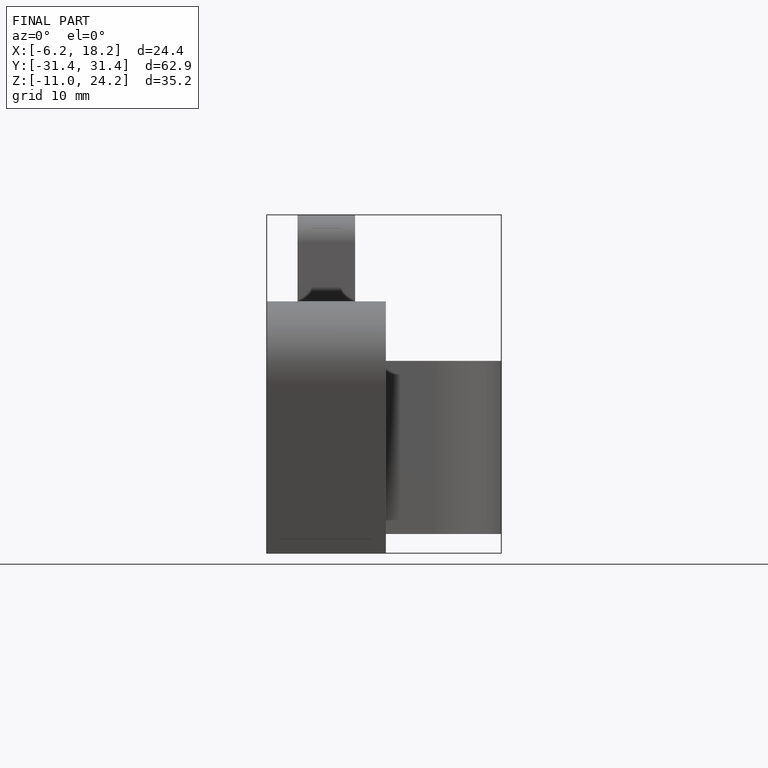
[diagram: finished part — front view with bounding-box wireframe]
